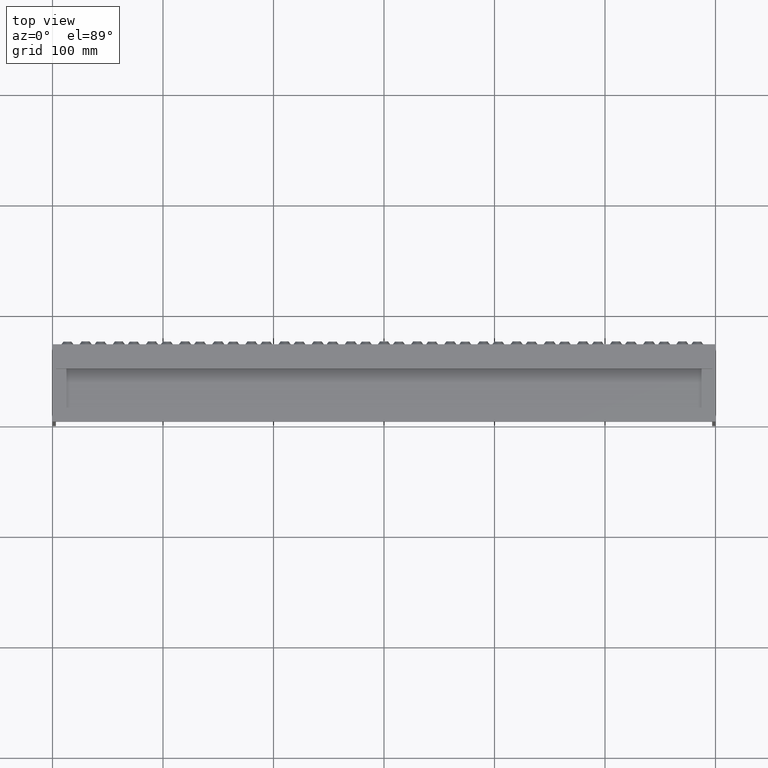
[diagram: clean part render]
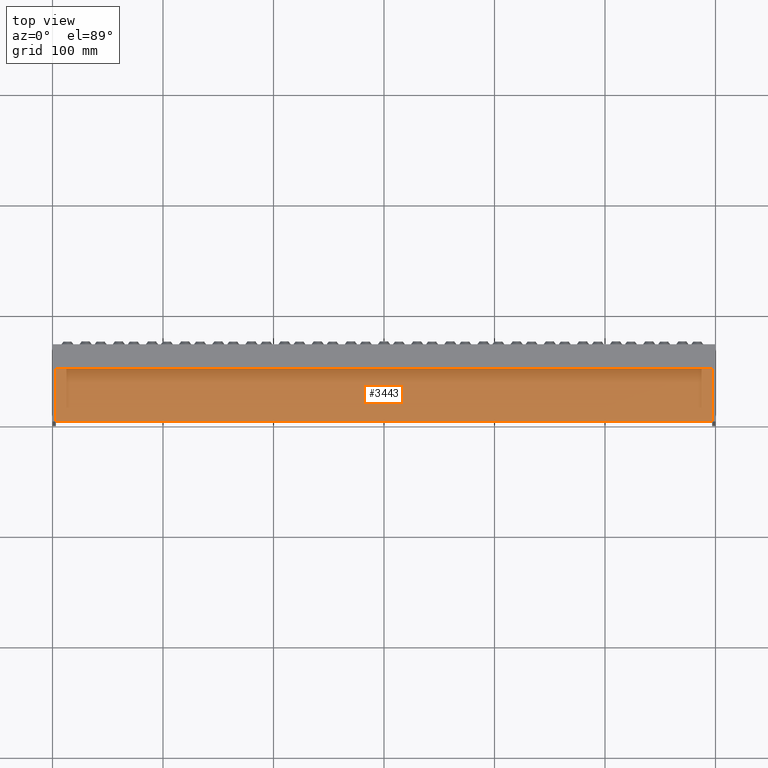
[diagram: same view with one face highlighted and labeled with its STEP entity id]
A machine part, top view. The second image highlights one B-rep face of the part: STEP entity #3443.
In plain terms, the highlighted planar face has unit normal (0, -0, -1).
Its self-contained STEP definition (entity closure, byte-faithful):
#1004 = LINE ( 'NONE', #2313, #20131 ) ;
#1799 = ORIENTED_EDGE ( 'NONE', *, *, #11550, .T. ) ;
#2313 = CARTESIAN_POINT ( 'NONE',  ( 297.0000000000000000, 48.00000000000011400, -13.00000000000000000 ) ) ;
#3193 = EDGE_CURVE ( 'NONE', #15734, #16680, #19702, .T. ) ;
#3443 = ADVANCED_FACE ( 'NONE', ( #14705 ), #17589, .F. ) ;
#3528 = VERTEX_POINT ( 'NONE', #21443 ) ;
#5482 = EDGE_CURVE ( 'NONE', #9728, #3528, #1004, .T. ) ;
#6283 = DIRECTION ( 'NONE',  ( -0.0000000000000000000, 1.000000000000000000, -3.614007241618339900E-017 ) ) ;
#7364 = VECTOR ( 'NONE', #22311, 1000.000000000000000 ) ;
#9174 = ORIENTED_EDGE ( 'NONE', *, *, #5482, .T. ) ;
#9728 = VERTEX_POINT ( 'NONE', #12314 ) ;
#9924 = AXIS2_PLACEMENT_3D ( 'NONE', #19316, #11562, #21269 ) ;
#11550 = EDGE_CURVE ( 'NONE', #16680, #9728, #24284, .T. ) ;
#11562 = DIRECTION ( 'NONE',  ( 0.0000000000000000000, -3.614007241618339900E-017, -1.000000000000000000 ) ) ;
#12314 = CARTESIAN_POINT ( 'NONE',  ( 297.0000000000000000, 5.050613422867832400E-016, -12.99999999999999800 ) ) ;
#12393 = CARTESIAN_POINT ( 'NONE',  ( -297.0000000000000000, 48.00000000000011400, -13.00000000000000000 ) ) ;
#13579 = LINE ( 'NONE', #18155, #20026 ) ;
#14282 = DIRECTION ( 'NONE',  ( 1.000000000000000000, -0.0000000000000000000, -0.0000000000000000000 ) ) ;
#14705 = FACE_OUTER_BOUND ( 'NONE', #21108, .T. ) ;
#15313 = ORIENTED_EDGE ( 'NONE', *, *, #3193, .T. ) ;
#15734 = VERTEX_POINT ( 'NONE', #12393 ) ;
#16680 = VERTEX_POINT ( 'NONE', #22277 ) ;
#17589 = PLANE ( 'NONE',  #9924 ) ;
#18155 = CARTESIAN_POINT ( 'NONE',  ( -373.1577310586390000, 48.00000000000011400, -13.00000000000000000 ) ) ;
#19316 = CARTESIAN_POINT ( 'NONE',  ( -373.1577310586390000, 48.00000000000011400, -13.00000000000000000 ) ) ;
#19702 = LINE ( 'NONE', #24463, #7364 ) ;
#20026 = VECTOR ( 'NONE', #14282, 1000.000000000000000 ) ;
#20131 = VECTOR ( 'NONE', #6283, 1000.000000000000000 ) ;
#20430 = ORIENTED_EDGE ( 'NONE', *, *, #21521, .F. ) ;
#21108 = EDGE_LOOP ( 'NONE', ( #20430, #15313, #1799, #9174 ) ) ;
#21269 = DIRECTION ( 'NONE',  ( 0.0000000000000000000, 1.000000000000000000, -3.614007241618339900E-017 ) ) ;
#21443 = CARTESIAN_POINT ( 'NONE',  ( 297.0000000000000000, 48.00000000000011400, -13.00000000000000000 ) ) ;
#21521 = EDGE_CURVE ( 'NONE', #15734, #3528, #13579, .T. ) ;
#21830 = VECTOR ( 'NONE', #22859, 1000.000000000000000 ) ;
#22277 = CARTESIAN_POINT ( 'NONE',  ( -297.0000000000000000, 1.102182119232617800E-013, -13.00000000000001100 ) ) ;
#22311 = DIRECTION ( 'NONE',  ( 0.0000000000000000000, -1.000000000000000000, 3.614007241618339900E-017 ) ) ;
#22859 = DIRECTION ( 'NONE',  ( 1.000000000000000000, -0.0000000000000000000, -0.0000000000000000000 ) ) ;
#24284 = LINE ( 'NONE', #24833, #21830 ) ;
#24463 = CARTESIAN_POINT ( 'NONE',  ( -297.0000000000000000, 48.00000000000011400, -13.00000000000000000 ) ) ;
#24833 = CARTESIAN_POINT ( 'NONE',  ( -373.1577310586390000, 5.050613422867832400E-016, -12.99999999999999800 ) ) ;